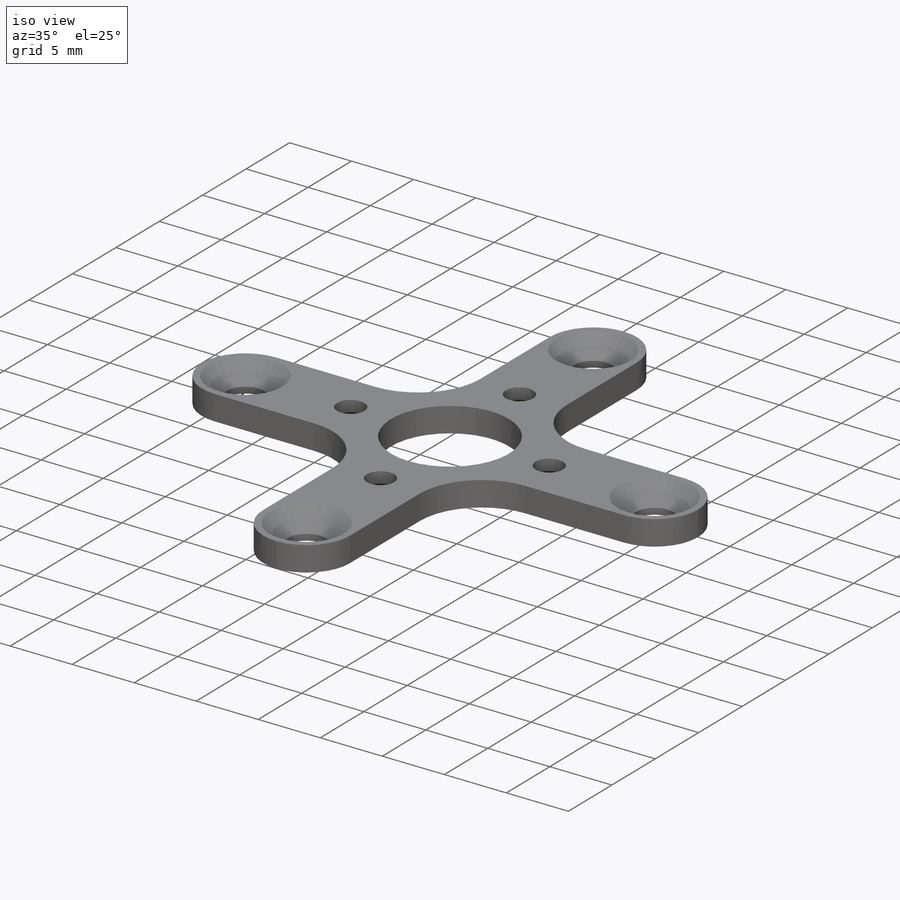
[diagram: iso view]
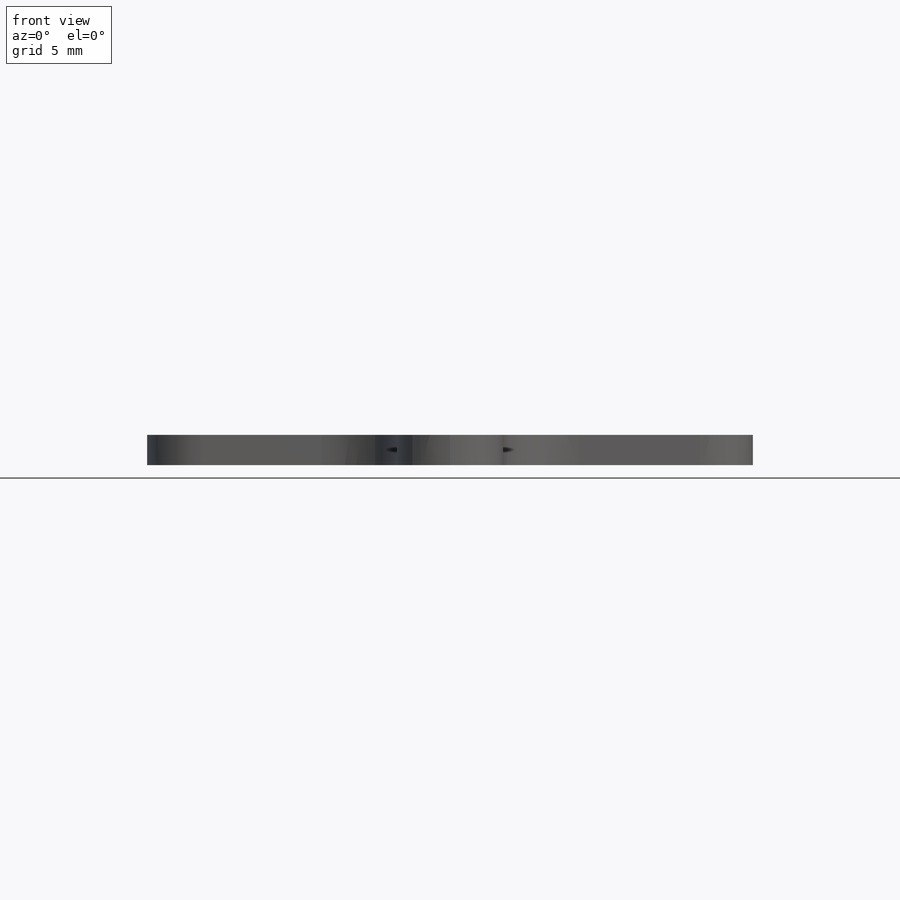
[diagram: front view]
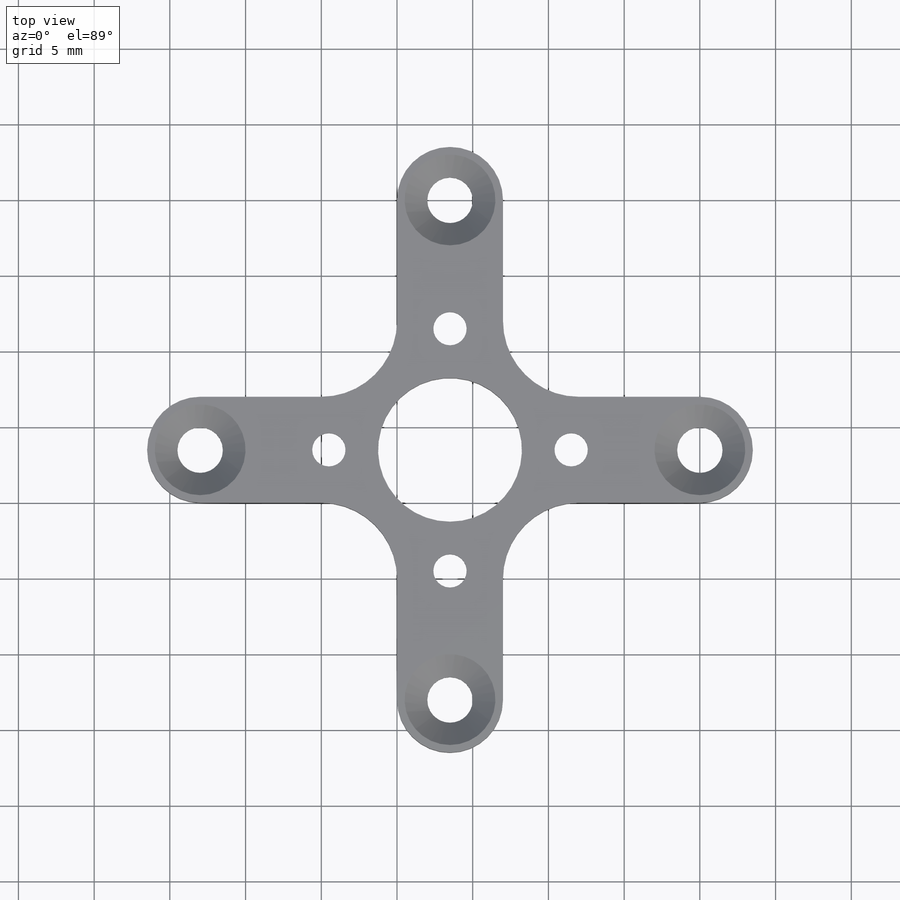
[diagram: top view]
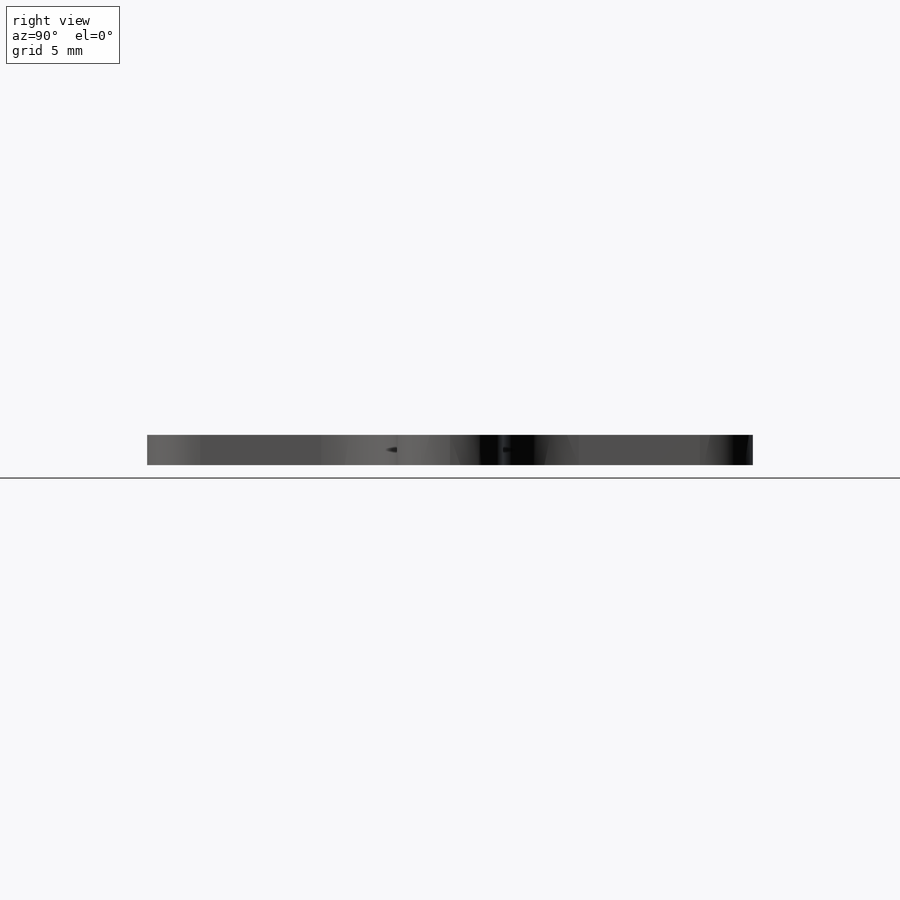
[diagram: right view]
SOLIDWORKS PART (.sldprt)
format: sldprt  version: not decoded by parser v0  size: 367,616 bytes
history: native  units: mm
features: sketch x7, fillet x2, cut_extrude x2, hole x2, material x1, extrude x1 (+11 scaffold rows collapsed)
feature tree (26):
  scaffold x11  (default folders/planes/origin — collapsed)
  material  "Material <not specified>"
  sketch  "Sketch1"  dims[c1.D1=~49.836336mm c1.D2=~18.885348mm c2.D2=90.0deg c3.D2=~18.885348mm c4.D2=90.0deg c5.D2=~18.885348mm c6.D2=90.0deg c7.D2=7.0mm c7.D3=~9.049229mm c7.D4=~9.049229mm c8.D3=3.5mm c8.D2=7.0mm c9.D3=3.5mm c9.D4=3.5mm c9.D1=~61.369457mm c10.D3=3.5mm c10.D4=~24.328922mm c10.D5=~24.328922mm c10.D1=16.5mm]
  extrude  "Boss-Extrude1"  Depth=2mm
  fillet  "Fillet2"  Radius=5mm
  fillet  "Fillet3"  Radius=3.5mm
  sketch  "Sketch2"  dims[c1.D1=9.5mm c1.D2=20.0mm c1.D3=3.5mm c2.D2=3.5mm c2.D3=3.5mm c2.D4=8.0mm]
  cut_extrude  "Cut-Extrude1"  Depth=2mm
  hole  "CSK for M2 Oval Head Machine Screw1"  Diameter=3mm Depth=2mm
  sketch  "Sketch4"  dims[c1.D1=3.5mm c1.D2=3.5mm c1.D3=3.5mm c1.D4=3.5mm c2.D3=20.0mm c2.D1=3.5mm c3.D3=3.5mm c3.D4=~23.334524mm c3.D2=4.0]
  sketch  "Sketch3"  dims[hole-wizard template sketch: 55 standard entries collapsed; hole parameters kept: c17.Thru Hole Depth=2.0mm c17.Near C'Sink Dia.=6.0mm c17.D4=~3.666174mm c17.Near C'Sink Angle=90.0deg]
  hole  "CSK for M2 Flat Head Machine Screw2"  Diameter=2.2mm Depth=2mm
  sketch  "Sketch6"  dims[c1.D1=8.0mm c1.D3=8.0mm c2.D1=8.0mm c2.D3=12.0mm c2.D2=4.0]
  sketch  "Sketch5"  dims[hole-wizard template sketch: 55 standard entries collapsed; hole parameters kept: c17.Thru Hole Depth=2.0mm c17.Near C'Sink Dia.=4.4mm c17.D4=~3.666174mm c17.Near C'Sink Angle=90.0deg]
  sketch  "Sketch7"
  cut_extrude  "Cut-Extrude2"  [1 undecoded]
decode coverage: 12 of 14 modeling features carry decoded parameters
note: ~ marks probable driven/reference dimensions
note: 1 parameter value undecoded
note: suppression state not decoded; provenance and decode notes live in map.json
